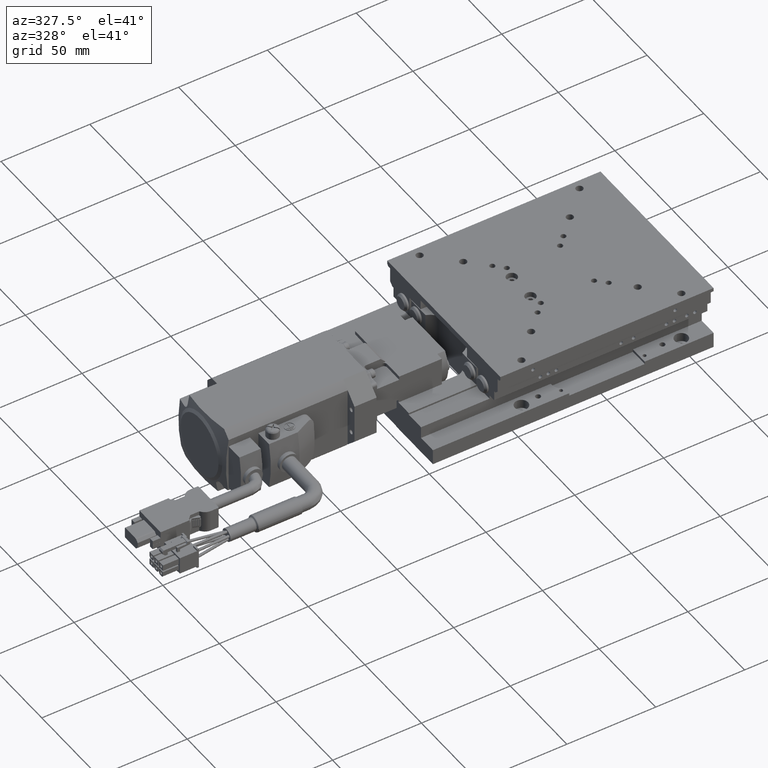
[diagram: clean part render]
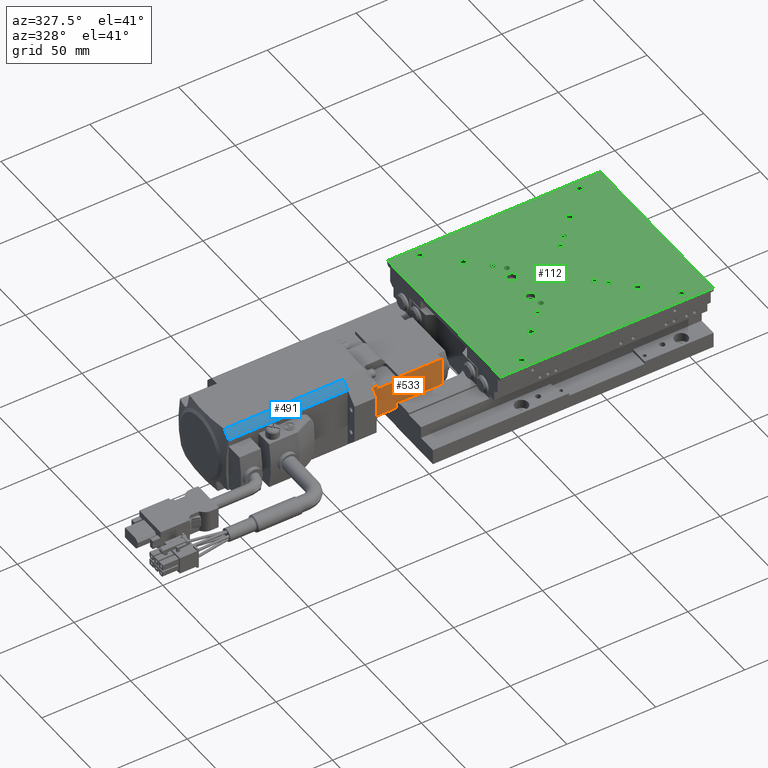
[diagram: same view with three faces highlighted in distinct colors, each labeled with its STEP entity id]
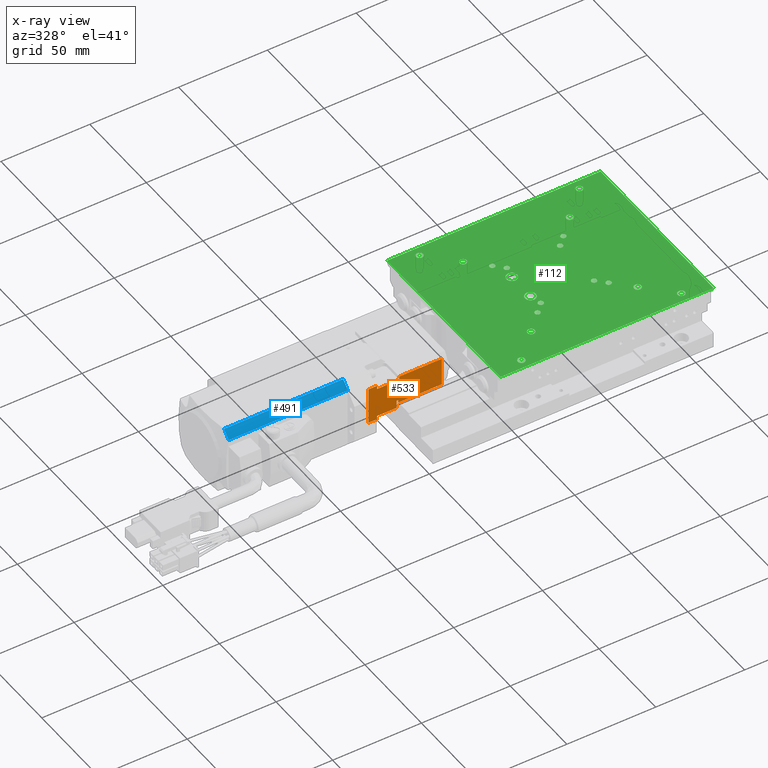
[diagram: x-ray of the same camera — body ghosted, the three highlighted faces saturated]
A machine part, auxiliary view with three faces highlighted in distinct colors.
The next image is the same camera in x-ray (body ghosted, the three faces saturated) — at least one of them is partly hidden behind the body in this view.
Their STEP definitions:

[orange] entity #533 — the highlighted planar face has unit normal (0, -1, 0).
#533=ADVANCED_FACE('',(#5699),#5698,.T.);
#5698=PLANE('',#17119);
#5699=FACE_OUTER_BOUND('',#17120,.T.);
#17116=CARTESIAN_POINT('',(-1.19150000000E+02,-1.95000000000E+01,9.40000000010E+00));
#17117=DIRECTION('',(0.00000000000E+00,-1.00000000000E+00,0.00000000000E+00));
#17118=DIRECTION('',(1.00000000000E+00,0.00000000000E+00,0.00000000000E+00));
#17119=AXIS2_PLACEMENT_3D('',#17116,#17117,#17118);
#17120=EDGE_LOOP('',(#24312,#24313,#24314,#24315,#24316,#24317,#24318,#24319,#24320,#24321,#24322,#24323,#24324,#24325));
#24312=ORIENTED_EDGE('',*,*,#29327,.T.);
#24313=ORIENTED_EDGE('',*,*,#29610,.T.);
#24314=ORIENTED_EDGE('',*,*,#29618,.F.);
#24315=ORIENTED_EDGE('',*,*,#29619,.F.);
#24316=ORIENTED_EDGE('',*,*,#29620,.T.);
#24317=ORIENTED_EDGE('',*,*,#29621,.T.);
#24318=ORIENTED_EDGE('',*,*,#29622,.T.);
#24319=ORIENTED_EDGE('',*,*,#29623,.F.);
#24320=ORIENTED_EDGE('',*,*,#29624,.T.);
#24321=ORIENTED_EDGE('',*,*,#29625,.T.);
#24322=ORIENTED_EDGE('',*,*,#29626,.T.);
#24323=ORIENTED_EDGE('',*,*,#29627,.F.);
#24324=ORIENTED_EDGE('',*,*,#29628,.F.);
#24325=ORIENTED_EDGE('',*,*,#29379,.T.);
#29327=EDGE_CURVE('',#37863,#37856,#37864,.T.);
#29379=EDGE_CURVE('',#38223,#37863,#38224,.T.);
#29610=EDGE_CURVE('',#37856,#39794,#39801,.T.);
#29618=EDGE_CURVE('',#39855,#39794,#39856,.T.);
#29619=EDGE_CURVE('',#39862,#39855,#39863,.T.);
#29620=EDGE_CURVE('',#39862,#39869,#39870,.T.);
#29621=EDGE_CURVE('',#39869,#39876,#39877,.T.);
#29622=EDGE_CURVE('',#39876,#39883,#39884,.T.);
#29623=EDGE_CURVE('',#39890,#39883,#39891,.T.);
#29624=EDGE_CURVE('',#39890,#39897,#39898,.T.);
#29625=EDGE_CURVE('',#39897,#39904,#39905,.T.);
#29626=EDGE_CURVE('',#39904,#39911,#39912,.T.);
#29627=EDGE_CURVE('',#39918,#39911,#39919,.T.);
#29628=EDGE_CURVE('',#38223,#39918,#39925,.T.);
#37856=VERTEX_POINT('',#55673);
#37863=VERTEX_POINT('',#55677);
#37864=LINE('',#55678,#55679);
#38223=VERTEX_POINT('',#55895);
#38224=LINE('',#55896,#55897);
#39794=VERTEX_POINT('',#56949);
#39801=LINE('',#56953,#56954);
#39855=VERTEX_POINT('',#56985);
#39856=LINE('',#56986,#56987);
#39862=VERTEX_POINT('',#56989);
#39863=LINE('',#56990,#56991);
#39869=VERTEX_POINT('',#56993);
#39870=LINE('',#56994,#56995);
#39876=VERTEX_POINT('',#56997);
#39877=LINE('',#56998,#56999);
#39883=VERTEX_POINT('',#57001);
#39884=LINE('',#57002,#57003);
#39890=VERTEX_POINT('',#57005);
#39891=LINE('',#57006,#57007);
#39897=VERTEX_POINT('',#57009);
#39898=LINE('',#57010,#57011);
#39904=VERTEX_POINT('',#57013);
#39905=LINE('',#57014,#57015);
#39911=VERTEX_POINT('',#57017);
#39912=LINE('',#57018,#57019);
#39918=VERTEX_POINT('',#57021);
#39919=LINE('',#57022,#57023);
#39925=LINE('',#57025,#57026);
#55673=CARTESIAN_POINT('',(-7.34999999999E+01,-1.95000000000E+01,1.65000000001E+01));
#55677=CARTESIAN_POINT('',(-9.80000000000E+01,-1.95000000000E+01,1.65000000000E+01));
#55678=CARTESIAN_POINT('',(-9.80000000000E+01,-1.95000000000E+01,1.65000000001E+01));
#55679=VECTOR('',#55680,2.45000000001E+01);
#55680=DIRECTION('',(1.00000000000E+00,0.00000000000E+00,0.00000000000E+00));
#55895=CARTESIAN_POINT('',(-9.80000000000E+01,-1.95000000000E+01,1.80000000001E+01));
#55896=CARTESIAN_POINT('',(-9.80000000000E+01,-1.95000000000E+01,1.80000000001E+01));
#55897=VECTOR('',#55898,1.50000000005E+00);
#55898=DIRECTION('',(0.00000000000E+00,0.00000000000E+00,-1.00000000000E+00));
#56949=CARTESIAN_POINT('',(-7.35000000000E+01,-1.95000000000E+01,3.25000000000E+01));
#56953=CARTESIAN_POINT('',(-7.34999999999E+01,-1.95000000000E+01,1.65000000001E+01));
#56954=VECTOR('',#56955,1.59999999999E+01);
#56955=DIRECTION('',(0.00000000000E+00,0.00000000000E+00,1.00000000000E+00));
#56985=CARTESIAN_POINT('',(-9.75000000000E+01,-1.95000000000E+01,3.25000000000E+01));
#56986=CARTESIAN_POINT('',(-9.75000000000E+01,-1.95000000000E+01,3.25000000000E+01));
#56987=VECTOR('',#56988,2.40000000000E+01);
#56988=DIRECTION('',(1.00000000000E+00,0.00000000000E+00,0.00000000000E+00));
#56989=CARTESIAN_POINT('',(-9.75000000000E+01,-1.95000000000E+01,3.05000000000E+01));
#56990=CARTESIAN_POINT('',(-9.75000000000E+01,-1.95000000000E+01,3.05000000000E+01));
#56991=VECTOR('',#56992,2.00000000004E+00);
#56992=DIRECTION('',(0.00000000000E+00,0.00000000000E+00,1.00000000000E+00));
#56993=CARTESIAN_POINT('',(-1.10000000000E+02,-1.94999999980E+01,3.05000000000E+01));
#56994=CARTESIAN_POINT('',(-9.75000000000E+01,-1.94999999980E+01,3.05000000000E+01));
#56995=VECTOR('',#56996,1.25000000000E+01);
#56996=DIRECTION('',(-1.00000000000E+00,0.00000000000E+00,0.00000000000E+00));
#56997=CARTESIAN_POINT('',(-1.10000000000E+02,-1.94999999980E+01,3.25000000000E+01));
#56998=CARTESIAN_POINT('',(-1.10000000000E+02,-1.94999999980E+01,3.05000000000E+01));
#56999=VECTOR('',#57000,2.00000000000E+00);
#57000=DIRECTION('',(0.00000000000E+00,0.00000000000E+00,1.00000000000E+00));
#57001=CARTESIAN_POINT('',(-1.15000000000E+02,-1.95000000000E+01,3.25000000000E+01));
#57002=CARTESIAN_POINT('',(-1.10000000000E+02,-1.95000000000E+01,3.25000000000E+01));
#57003=VECTOR('',#57004,5.00000000000E+00);
#57004=DIRECTION('',(-1.00000000000E+00,0.00000000000E+00,0.00000000000E+00));
#57005=CARTESIAN_POINT('',(-1.15000000000E+02,-1.95000000000E+01,1.15000000001E+01));
#57006=CARTESIAN_POINT('',(-1.15000000000E+02,-1.95000000000E+01,1.15000000001E+01));
#57007=VECTOR('',#57008,2.09999999999E+01);
#57008=DIRECTION('',(0.00000000000E+00,0.00000000000E+00,1.00000000000E+00));
#57009=CARTESIAN_POINT('',(-1.10000000000E+02,-1.94999999980E+01,1.15000000001E+01));
#57010=CARTESIAN_POINT('',(-1.15000000000E+02,-1.95000000000E+01,1.15000000001E+01));
#57011=VECTOR('',#57012,5.00000000000E+00);
#57012=DIRECTION('',(1.00000000000E+00,0.00000000000E+00,0.00000000000E+00));
#57013=CARTESIAN_POINT('',(-1.10000000000E+02,-1.94999999980E+01,1.35000000000E+01));
#57014=CARTESIAN_POINT('',(-1.10000000000E+02,-1.94999999980E+01,1.15000000001E+01));
#57015=VECTOR('',#57016,1.99999999996E+00);
#57016=DIRECTION('',(0.00000000000E+00,0.00000000000E+00,1.00000000000E+00));
#57017=CARTESIAN_POINT('',(-9.90000000000E+01,-1.94999999980E+01,1.35000000000E+01));
#57018=CARTESIAN_POINT('',(-1.10000000000E+02,-1.94999999980E+01,1.35000000000E+01));
#57019=VECTOR('',#57020,1.10000000000E+01);
#57020=DIRECTION('',(1.00000000000E+00,0.00000000000E+00,0.00000000000E+00));
#57021=CARTESIAN_POINT('',(-9.90000000000E+01,-1.95000000000E+01,1.80000000000E+01));
#57022=CARTESIAN_POINT('',(-9.90000000000E+01,-1.95000000000E+01,1.80000000000E+01));
#57023=VECTOR('',#57024,4.50000000000E+00);
#57024=DIRECTION('',(0.00000000000E+00,0.00000000000E+00,-1.00000000000E+00));
#57025=CARTESIAN_POINT('',(-9.80000000000E+01,-1.95000000000E+01,1.80000000000E+01));
#57026=VECTOR('',#57027,1.00000000001E+00);
#57027=DIRECTION('',(-1.00000000000E+00,0.00000000000E+00,0.00000000000E+00));

[blue] entity #491 — the highlighted cylindrical surface (partial cylindrical patch) has radius 27 mm, axis along (-1, 0, 0).
#491=ADVANCED_FACE('',(#5260),#5259,.T.);
#5259=CYLINDRICAL_SURFACE('',#16890,2.70000000000E+01);
#5260=FACE_OUTER_BOUND('',#16891,.T.);
#16887=CARTESIAN_POINT('',(-1.61004390958E+02,1.37565921016E-05,2.20000095649E+01));
#16888=DIRECTION('',(-1.00000000000E+00,2.85465837313E-07,2.85476031338E-07));
#16889=DIRECTION('',(2.85476031338E-07,-1.01738241094E-27,1.00000000000E+00));
#16890=AXIS2_PLACEMENT_3D('',#16887,#16888,#16889);
#16891=EDGE_LOOP('',(#24072,#24073,#24074,#24075,#24076,#24077));
#24072=ORIENTED_EDGE('',*,*,#29442,.F.);
#24073=ORIENTED_EDGE('',*,*,#29443,.T.);
#24074=ORIENTED_EDGE('',*,*,#29444,.T.);
#24075=ORIENTED_EDGE('',*,*,#29445,.T.);
#24076=ORIENTED_EDGE('',*,*,#29446,.F.);
#24077=ORIENTED_EDGE('',*,*,#29447,.T.);
#29442=EDGE_CURVE('',#38652,#38653,#38654,.T.);
#29443=EDGE_CURVE('',#38652,#38660,#38661,.T.);
#29444=EDGE_CURVE('',#38660,#38667,#38668,.T.);
#29445=EDGE_CURVE('',#38667,#38674,#38675,.T.);
#29446=EDGE_CURVE('',#38681,#38674,#38682,.T.);
#29447=EDGE_CURVE('',#38681,#38653,#38688,.T.);
#38652=VERTEX_POINT('',#56229);
#38653=VERTEX_POINT('',#56230);
#38654=LINE('',#56231,#56232);
#38660=VERTEX_POINT('',#56234);
#38661=CIRCLE('',#56238,2.70000000000E+01);
#38667=VERTEX_POINT('',#56239);
#38668=CIRCLE('',#56243,2.70000000000E+01);
#38674=VERTEX_POINT('',#56244);
#38675=CIRCLE('',#56248,2.70000000000E+01);
#38681=VERTEX_POINT('',#56249);
#38682=LINE('',#56250,#56251);
#38688=CIRCLE('',#56256,2.70000000000E+01);
#56229=CARTESIAN_POINT('',(-1.27499994792E+02,-2.09999958078E+01,3.89705627486E+01));
#56230=CARTESIAN_POINT('',(-1.94508792869E+02,-2.09999766790E+01,3.89705818780E+01));
#56231=CARTESIAN_POINT('',(-1.27499994792E+02,-2.09999958078E+01,3.89705627486E+01));
#56232=VECTOR('',#56233,6.70087980764E+01);
#56233=DIRECTION('',(-1.00000000000E+00,2.85465836599E-07,2.85476030329E-07));
#56234=CARTESIAN_POINT('',(-1.27499994792E+02,-2.08708053137E+01,3.91291946855E+01));
#56235=CARTESIAN_POINT('',(-1.27499988797E+02,4.19222988268E-06,2.20000000001E+01));
#56236=DIRECTION('',(-1.00000000000E+00,2.85465837313E-07,2.85476031338E-07));
#56237=DIRECTION('',(4.25960622433E-08,7.77777777778E-01,-6.28539361055E-01));
#56238=AXIS2_PLACEMENT_3D('',#56235,#56236,#56237);
#56239=CARTESIAN_POINT('',(-1.27499994792E+02,-1.71291904931E+01,4.28708095061E+01));
#56240=CARTESIAN_POINT('',(-1.27499988797E+02,4.19222988268E-06,2.20000000001E+01));
#56241=DIRECTION('',(-1.00000000000E+00,2.85465837313E-07,2.85476031338E-07));
#56242=DIRECTION('',(4.25960622433E-08,7.77777777778E-01,-6.28539361055E-01));
#56243=AXIS2_PLACEMENT_3D('',#56240,#56241,#56242);
#56244=CARTESIAN_POINT('',(-1.27499994792E+02,-1.69705585562E+01,4.30000000001E+01));
#56245=CARTESIAN_POINT('',(-1.27499988797E+02,4.19222988268E-06,2.20000000001E+01));
#56246=DIRECTION('',(-1.00000000000E+00,2.85465837313E-07,2.85476031338E-07));
#56247=DIRECTION('',(4.25960622433E-08,7.77777777778E-01,-6.28539361055E-01));
#56248=AXIS2_PLACEMENT_3D('',#56245,#56246,#56247);
#56249=CARTESIAN_POINT('',(-1.94508790568E+02,-1.69705394275E+01,4.30000191296E+01));
#56250=CARTESIAN_POINT('',(-1.94508790568E+02,-1.69705394275E+01,4.30000191296E+01));
#56251=VECTOR('',#56252,6.70087957758E+01);
#56252=DIRECTION('',(1.00000000000E+00,-2.85465837333E-07,-2.85476031435E-07));
#56253=CARTESIAN_POINT('',(-1.94508791719E+02,2.33209539180E-05,2.20000191296E+01));
#56254=DIRECTION('',(1.00000000000E+00,-2.85465837313E-07,-2.85476031338E-07));
#56255=DIRECTION('',(-4.26103982751E-08,6.28539361055E-01,-7.77777777778E-01));
#56256=AXIS2_PLACEMENT_3D('',#56253,#56254,#56255);

[green] entity #112 — the highlighted planar face has unit normal (0, 0, 1).
#112=ADVANCED_FACE('',(#1377,#1378,#1379,#1380,#1381,#1382,#1383,#1384,#1385,#1386,#1387,#1388,#1389,#1390,#1391,#1392,#1393,#1394,#1395),#1376,.T.);
#1376=PLANE('',#14187);
#1377=FACE_OUTER_BOUND('',#14188,.T.);
#1378=FACE_BOUND('',#14189,.T.);
#1379=FACE_BOUND('',#14190,.T.);
#1380=FACE_BOUND('',#14191,.T.);
#1381=FACE_BOUND('',#14192,.T.);
#1382=FACE_BOUND('',#14193,.T.);
#1383=FACE_BOUND('',#14194,.T.);
#1384=FACE_BOUND('',#14195,.T.);
#1385=FACE_BOUND('',#14196,.T.);
#1386=FACE_BOUND('',#14197,.T.);
#1387=FACE_BOUND('',#14198,.T.);
#1388=FACE_BOUND('',#14199,.T.);
#1389=FACE_BOUND('',#14200,.T.);
#1390=FACE_BOUND('',#14201,.T.);
#1391=FACE_BOUND('',#14202,.T.);
#1392=FACE_BOUND('',#14203,.T.);
#1393=FACE_BOUND('',#14204,.T.);
#1394=FACE_BOUND('',#14205,.T.);
#1395=FACE_BOUND('',#14206,.T.);
#14184=CARTESIAN_POINT('',(7.00000000000E+01,-6.00000000000E+01,3.70000000000E+01));
#14185=DIRECTION('',(0.00000000000E+00,-0.00000000000E+00,1.00000000000E+00));
#14186=DIRECTION('',(0.00000000000E+00,1.00000000000E+00,0.00000000000E+00));
#14187=AXIS2_PLACEMENT_3D('',#14184,#14185,#14186);
#14188=EDGE_LOOP('',(#22225,#22226,#22227,#22228));
#14189=EDGE_LOOP('',(#22229,#22230));
#14190=EDGE_LOOP('',(#22231,#22232));
#14191=EDGE_LOOP('',(#22233,#22234));
#14192=EDGE_LOOP('',(#22235,#22236));
#14193=EDGE_LOOP('',(#22237,#22238));
#14194=EDGE_LOOP('',(#22239,#22240));
#14195=EDGE_LOOP('',(#22241,#22242));
#14196=EDGE_LOOP('',(#22243,#22244));
#14197=EDGE_LOOP('',(#22245,#22246));
#14198=EDGE_LOOP('',(#22247,#22248));
#14199=EDGE_LOOP('',(#22249,#22250));
#14200=EDGE_LOOP('',(#22251,#22252));
#14201=EDGE_LOOP('',(#22253,#22254));
#14202=EDGE_LOOP('',(#22255,#22256));
#14203=EDGE_LOOP('',(#22257,#22258));
#14204=EDGE_LOOP('',(#22259,#22260));
#14205=EDGE_LOOP('',(#22261,#22262));
#14206=EDGE_LOOP('',(#22263,#22264));
#22225=ORIENTED_EDGE('',*,*,#28367,.T.);
#22226=ORIENTED_EDGE('',*,*,#28368,.F.);
#22227=ORIENTED_EDGE('',*,*,#28369,.T.);
#22228=ORIENTED_EDGE('',*,*,#28370,.T.);
#22229=ORIENTED_EDGE('',*,*,#28371,.F.);
#22230=ORIENTED_EDGE('',*,*,#28372,.F.);
#22231=ORIENTED_EDGE('',*,*,#28373,.F.);
#22232=ORIENTED_EDGE('',*,*,#28374,.F.);
#22233=ORIENTED_EDGE('',*,*,#28375,.F.);
#22234=ORIENTED_EDGE('',*,*,#28376,.F.);
#22235=ORIENTED_EDGE('',*,*,#28377,.F.);
#22236=ORIENTED_EDGE('',*,*,#28378,.F.);
#22237=ORIENTED_EDGE('',*,*,#28379,.F.);
#22238=ORIENTED_EDGE('',*,*,#28380,.F.);
#22239=ORIENTED_EDGE('',*,*,#28381,.F.);
#22240=ORIENTED_EDGE('',*,*,#28382,.F.);
#22241=ORIENTED_EDGE('',*,*,#28383,.F.);
#22242=ORIENTED_EDGE('',*,*,#28384,.F.);
#22243=ORIENTED_EDGE('',*,*,#28385,.F.);
#22244=ORIENTED_EDGE('',*,*,#28386,.F.);
#22245=ORIENTED_EDGE('',*,*,#28387,.F.);
#22246=ORIENTED_EDGE('',*,*,#28388,.F.);
#22247=ORIENTED_EDGE('',*,*,#28389,.F.);
#22248=ORIENTED_EDGE('',*,*,#28390,.F.);
#22249=ORIENTED_EDGE('',*,*,#28391,.F.);
#22250=ORIENTED_EDGE('',*,*,#28392,.F.);
#22251=ORIENTED_EDGE('',*,*,#28393,.T.);
#22252=ORIENTED_EDGE('',*,*,#28394,.T.);
#22253=ORIENTED_EDGE('',*,*,#28395,.T.);
#22254=ORIENTED_EDGE('',*,*,#28396,.T.);
#22255=ORIENTED_EDGE('',*,*,#28397,.F.);
#22256=ORIENTED_EDGE('',*,*,#28398,.F.);
#22257=ORIENTED_EDGE('',*,*,#28399,.F.);
#22258=ORIENTED_EDGE('',*,*,#28400,.F.);
#22259=ORIENTED_EDGE('',*,*,#28401,.F.);
#22260=ORIENTED_EDGE('',*,*,#28402,.F.);
#22261=ORIENTED_EDGE('',*,*,#28403,.F.);
#22262=ORIENTED_EDGE('',*,*,#28404,.F.);
#22263=ORIENTED_EDGE('',*,*,#28405,.F.);
#22264=ORIENTED_EDGE('',*,*,#28406,.F.);
#28367=EDGE_CURVE('',#31438,#31439,#31440,.T.);
#28368=EDGE_CURVE('',#31446,#31439,#31447,.T.);
#28369=EDGE_CURVE('',#31446,#31453,#31454,.T.);
#28370=EDGE_CURVE('',#31453,#31438,#31460,.T.);
#28371=EDGE_CURVE('',#31466,#31467,#31468,.T.);
#28372=EDGE_CURVE('',#31467,#31466,#31474,.T.);
#28373=EDGE_CURVE('',#31480,#31481,#31482,.T.);
#28374=EDGE_CURVE('',#31481,#31480,#31488,.T.);
#28375=EDGE_CURVE('',#31494,#31495,#31496,.T.);
#28376=EDGE_CURVE('',#31495,#31494,#31502,.T.);
#28377=EDGE_CURVE('',#31508,#31509,#31510,.T.);
#28378=EDGE_CURVE('',#31509,#31508,#31516,.T.);
#28379=EDGE_CURVE('',#31522,#31523,#31524,.T.);
#28380=EDGE_CURVE('',#31523,#31522,#31530,.T.);
#28381=EDGE_CURVE('',#31536,#31537,#31538,.T.);
#28382=EDGE_CURVE('',#31537,#31536,#31544,.T.);
#28383=EDGE_CURVE('',#31550,#31551,#31552,.T.);
#28384=EDGE_CURVE('',#31551,#31550,#31558,.T.);
#28385=EDGE_CURVE('',#31564,#31565,#31566,.T.);
#28386=EDGE_CURVE('',#31565,#31564,#31572,.T.);
#28387=EDGE_CURVE('',#31578,#31579,#31580,.T.);
#28388=EDGE_CURVE('',#31579,#31578,#31586,.T.);
#28389=EDGE_CURVE('',#31592,#31593,#31594,.T.);
#28390=EDGE_CURVE('',#31593,#31592,#31600,.T.);
#28391=EDGE_CURVE('',#31606,#31607,#31608,.T.);
#28392=EDGE_CURVE('',#31607,#31606,#31614,.T.);
#28393=EDGE_CURVE('',#31620,#31621,#31622,.T.);
#28394=EDGE_CURVE('',#31621,#31620,#31628,.T.);
#28395=EDGE_CURVE('',#31634,#31635,#31636,.T.);
#28396=EDGE_CURVE('',#31635,#31634,#31642,.T.);
#28397=EDGE_CURVE('',#31648,#31649,#31650,.T.);
#28398=EDGE_CURVE('',#31649,#31648,#31656,.T.);
#28399=EDGE_CURVE('',#31662,#31663,#31664,.T.);
#28400=EDGE_CURVE('',#31663,#31662,#31670,.T.);
#28401=EDGE_CURVE('',#31676,#31677,#31678,.T.);
#28402=EDGE_CURVE('',#31677,#31676,#31684,.T.);
#28403=EDGE_CURVE('',#31690,#31691,#31692,.T.);
#28404=EDGE_CURVE('',#31691,#31690,#31698,.T.);
#28405=EDGE_CURVE('',#31704,#31705,#31706,.T.);
#28406=EDGE_CURVE('',#31705,#31704,#31712,.T.);
#31438=VERTEX_POINT('',#51815);
#31439=VERTEX_POINT('',#51816);
#31440=LINE('',#51817,#51818);
#31446=VERTEX_POINT('',#51820);
#31447=LINE('',#51821,#51822);
#31453=VERTEX_POINT('',#51824);
#31454=LINE('',#51825,#51826);
#31460=LINE('',#51828,#51829);
#31466=VERTEX_POINT('',#51831);
#31467=VERTEX_POINT('',#51832);
#31468=CIRCLE('',#51836,1.50000000000E+00);
#31474=CIRCLE('',#51840,1.50000000000E+00);
#31480=VERTEX_POINT('',#51841);
#31481=VERTEX_POINT('',#51842);
#31482=CIRCLE('',#51846,1.50000000000E+00);
#31488=CIRCLE('',#51850,1.50000000000E+00);
#31494=VERTEX_POINT('',#51851);
#31495=VERTEX_POINT('',#51852);
#31496=CIRCLE('',#51856,1.50000000000E+00);
#31502=CIRCLE('',#51860,1.50000000000E+00);
#31508=VERTEX_POINT('',#51861);
#31509=VERTEX_POINT('',#51862);
#31510=CIRCLE('',#51866,1.50000000000E+00);
#31516=CIRCLE('',#51870,1.50000000000E+00);
#31522=VERTEX_POINT('',#51871);
#31523=VERTEX_POINT('',#51872);
#31524=CIRCLE('',#51876,1.50000000000E+00);
#31530=CIRCLE('',#51880,1.50000000000E+00);
#31536=VERTEX_POINT('',#51881);
#31537=VERTEX_POINT('',#51882);
#31538=CIRCLE('',#51886,1.50000000000E+00);
#31544=CIRCLE('',#51890,1.50000000000E+00);
#31550=VERTEX_POINT('',#51891);
#31551=VERTEX_POINT('',#51892);
#31552=CIRCLE('',#51896,1.50000000000E+00);
#31558=CIRCLE('',#51900,1.50000000000E+00);
#31564=VERTEX_POINT('',#51901);
#31565=VERTEX_POINT('',#51902);
#31566=CIRCLE('',#51906,2.00000000000E+00);
#31572=CIRCLE('',#51910,2.00000000000E+00);
#31578=VERTEX_POINT('',#51911);
#31579=VERTEX_POINT('',#51912);
#31580=CIRCLE('',#51916,2.00000000000E+00);
#31586=CIRCLE('',#51920,2.00000000000E+00);
#31592=VERTEX_POINT('',#51921);
#31593=VERTEX_POINT('',#51922);
#31594=CIRCLE('',#51926,2.00000000000E+00);
#31600=CIRCLE('',#51930,2.00000000000E+00);
#31606=VERTEX_POINT('',#51931);
#31607=VERTEX_POINT('',#51932);
#31608=CIRCLE('',#51936,2.00000000000E+00);
#31614=CIRCLE('',#51940,2.00000000000E+00);
#31620=VERTEX_POINT('',#51941);
#31621=VERTEX_POINT('',#51942);
#31622=CIRCLE('',#51946,3.00000000000E+00);
#31628=CIRCLE('',#51950,3.00000000000E+00);
#31634=VERTEX_POINT('',#51951);
#31635=VERTEX_POINT('',#51952);
#31636=CIRCLE('',#51956,3.00000000000E+00);
#31642=CIRCLE('',#51960,3.00000000000E+00);
#31648=VERTEX_POINT('',#51961);
#31649=VERTEX_POINT('',#51962);
#31650=CIRCLE('',#51966,1.50000000000E+00);
#31656=CIRCLE('',#51970,1.50000000000E+00);
#31662=VERTEX_POINT('',#51971);
#31663=VERTEX_POINT('',#51972);
#31664=CIRCLE('',#51976,2.00000000000E+00);
#31670=CIRCLE('',#51980,2.00000000000E+00);
#31676=VERTEX_POINT('',#51981);
#31677=VERTEX_POINT('',#51982);
#31678=CIRCLE('',#51986,2.00000000000E+00);
#31684=CIRCLE('',#51990,2.00000000000E+00);
#31690=VERTEX_POINT('',#51991);
#31691=VERTEX_POINT('',#51992);
#31692=CIRCLE('',#51996,2.00000000000E+00);
#31698=CIRCLE('',#52000,2.00000000000E+00);
#31704=VERTEX_POINT('',#52001);
#31705=VERTEX_POINT('',#52002);
#31706=CIRCLE('',#52006,2.00000000000E+00);
#31712=CIRCLE('',#52010,2.00000000000E+00);
#51815=CARTESIAN_POINT('',(-6.00000000000E+01,-5.00000000000E+01,3.70000000000E+01));
#51816=CARTESIAN_POINT('',(6.00000000000E+01,-5.00000000000E+01,3.70000000000E+01));
#51817=CARTESIAN_POINT('',(-6.00000000000E+01,-5.00000000000E+01,3.70000000000E+01));
#51818=VECTOR('',#51819,1.20000000000E+02);
#51819=DIRECTION('',(1.00000000000E+00,0.00000000000E+00,0.00000000000E+00));
#51820=CARTESIAN_POINT('',(6.00000000000E+01,5.00000000000E+01,3.70000000000E+01));
#51821=CARTESIAN_POINT('',(6.00000000000E+01,5.00000000000E+01,3.70000000000E+01));
#51822=VECTOR('',#51823,1.00000000000E+02);
#51823=DIRECTION('',(0.00000000000E+00,-1.00000000000E+00,0.00000000000E+00));
#51824=CARTESIAN_POINT('',(-6.00000000000E+01,5.00000000000E+01,3.70000000000E+01));
#51825=CARTESIAN_POINT('',(6.00000000000E+01,5.00000000000E+01,3.70000000000E+01));
#51826=VECTOR('',#51827,1.20000000000E+02);
#51827=DIRECTION('',(-1.00000000000E+00,0.00000000000E+00,0.00000000000E+00));
#51828=CARTESIAN_POINT('',(-6.00000000000E+01,5.00000000000E+01,3.70000000000E+01));
#51829=VECTOR('',#51830,1.00000000000E+02);
#51830=DIRECTION('',(0.00000000000E+00,-1.00000000000E+00,0.00000000000E+00));
#51831=CARTESIAN_POINT('',(1.65000000000E+01,-1.50000000000E+01,3.69999999998E+01));
#51832=CARTESIAN_POINT('',(1.35000000000E+01,-1.50000000000E+01,3.69999999998E+01));
#51833=CARTESIAN_POINT('',(1.50000000000E+01,-1.50000000000E+01,3.69999999998E+01));
#51834=DIRECTION('',(0.00000000000E+00,0.00000000000E+00,1.00000000000E+00));
#51835=DIRECTION('',(-1.00000000000E+00,1.22464679915E-16,0.00000000000E+00));
#51836=AXIS2_PLACEMENT_3D('',#51833,#51834,#51835);
#51837=CARTESIAN_POINT('',(1.50000000000E+01,-1.50000000000E+01,3.69999999998E+01));
#51838=DIRECTION('',(0.00000000000E+00,0.00000000000E+00,1.00000000000E+00));
#51839=DIRECTION('',(-1.00000000000E+00,1.22464679915E-16,0.00000000000E+00));
#51840=AXIS2_PLACEMENT_3D('',#51837,#51838,#51839);
#51841=CARTESIAN_POINT('',(1.65000000000E+01,1.50000000000E+01,3.69999999998E+01));
#51842=CARTESIAN_POINT('',(1.35000000000E+01,1.50000000000E+01,3.69999999998E+01));
#51843=CARTESIAN_POINT('',(1.50000000000E+01,1.50000000000E+01,3.69999999998E+01));
#51844=DIRECTION('',(0.00000000000E+00,0.00000000000E+00,1.00000000000E+00));
#51845=DIRECTION('',(-1.00000000000E+00,1.22464679915E-16,0.00000000000E+00));
#51846=AXIS2_PLACEMENT_3D('',#51843,#51844,#51845);
#51847=CARTESIAN_POINT('',(1.50000000000E+01,1.50000000000E+01,3.69999999998E+01));
#51848=DIRECTION('',(0.00000000000E+00,0.00000000000E+00,1.00000000000E+00));
#51849=DIRECTION('',(-1.00000000000E+00,1.22464679915E-16,0.00000000000E+00));
#51850=AXIS2_PLACEMENT_3D('',#51847,#51848,#51849);
#51851=CARTESIAN_POINT('',(-1.35000000000E+01,1.50000000000E+01,3.69999999998E+01));
#51852=CARTESIAN_POINT('',(-1.65000000000E+01,1.50000000000E+01,3.69999999998E+01));
#51853=CARTESIAN_POINT('',(-1.50000000000E+01,1.50000000000E+01,3.69999999998E+01));
#51854=DIRECTION('',(0.00000000000E+00,0.00000000000E+00,1.00000000000E+00));
#51855=DIRECTION('',(-1.00000000000E+00,1.22464679915E-16,0.00000000000E+00));
#51856=AXIS2_PLACEMENT_3D('',#51853,#51854,#51855);
#51857=CARTESIAN_POINT('',(-1.50000000000E+01,1.50000000000E+01,3.69999999998E+01));
#51858=DIRECTION('',(0.00000000000E+00,0.00000000000E+00,1.00000000000E+00));
#51859=DIRECTION('',(-1.00000000000E+00,1.22464679915E-16,0.00000000000E+00));
#51860=AXIS2_PLACEMENT_3D('',#51857,#51858,#51859);
#51861=CARTESIAN_POINT('',(2.15000000000E+01,-2.00000000000E+01,3.69999999998E+01));
#51862=CARTESIAN_POINT('',(1.85000000000E+01,-2.00000000000E+01,3.69999999998E+01));
#51863=CARTESIAN_POINT('',(2.00000000000E+01,-2.00000000000E+01,3.69999999998E+01));
#51864=DIRECTION('',(0.00000000000E+00,0.00000000000E+00,1.00000000000E+00));
#51865=DIRECTION('',(-1.00000000000E+00,1.22464679915E-16,0.00000000000E+00));
#51866=AXIS2_PLACEMENT_3D('',#51863,#51864,#51865);
#51867=CARTESIAN_POINT('',(2.00000000000E+01,-2.00000000000E+01,3.69999999998E+01));
#51868=DIRECTION('',(0.00000000000E+00,0.00000000000E+00,1.00000000000E+00));
#51869=DIRECTION('',(-1.00000000000E+00,1.22464679915E-16,0.00000000000E+00));
#51870=AXIS2_PLACEMENT_3D('',#51867,#51868,#51869);
#51871=CARTESIAN_POINT('',(-1.85000000000E+01,-2.00000000000E+01,3.69999999998E+01));
#51872=CARTESIAN_POINT('',(-2.15000000000E+01,-2.00000000000E+01,3.69999999998E+01));
#51873=CARTESIAN_POINT('',(-2.00000000000E+01,-2.00000000000E+01,3.69999999998E+01));
#51874=DIRECTION('',(0.00000000000E+00,0.00000000000E+00,1.00000000000E+00));
#51875=DIRECTION('',(-1.00000000000E+00,1.22464679915E-16,0.00000000000E+00));
#51876=AXIS2_PLACEMENT_3D('',#51873,#51874,#51875);
#51877=CARTESIAN_POINT('',(-2.00000000000E+01,-2.00000000000E+01,3.69999999998E+01));
#51878=DIRECTION('',(0.00000000000E+00,0.00000000000E+00,1.00000000000E+00));
#51879=DIRECTION('',(-1.00000000000E+00,1.22464679915E-16,0.00000000000E+00));
#51880=AXIS2_PLACEMENT_3D('',#51877,#51878,#51879);
#51881=CARTESIAN_POINT('',(-1.85000000000E+01,2.00000000000E+01,3.69999999998E+01));
#51882=CARTESIAN_POINT('',(-2.15000000000E+01,2.00000000000E+01,3.69999999998E+01));
#51883=CARTESIAN_POINT('',(-2.00000000000E+01,2.00000000000E+01,3.69999999998E+01));
#51884=DIRECTION('',(0.00000000000E+00,0.00000000000E+00,1.00000000000E+00));
#51885=DIRECTION('',(-1.00000000000E+00,1.22464679915E-16,0.00000000000E+00));
#51886=AXIS2_PLACEMENT_3D('',#51883,#51884,#51885);
#51887=CARTESIAN_POINT('',(-2.00000000000E+01,2.00000000000E+01,3.69999999998E+01));
#51888=DIRECTION('',(0.00000000000E+00,0.00000000000E+00,1.00000000000E+00));
#51889=DIRECTION('',(-1.00000000000E+00,1.22464679915E-16,0.00000000000E+00));
#51890=AXIS2_PLACEMENT_3D('',#51887,#51888,#51889);
#51891=CARTESIAN_POINT('',(2.15000000000E+01,2.00000000000E+01,3.69999999998E+01));
#51892=CARTESIAN_POINT('',(1.85000000000E+01,2.00000000000E+01,3.69999999998E+01));
#51893=CARTESIAN_POINT('',(2.00000000000E+01,2.00000000000E+01,3.69999999998E+01));
#51894=DIRECTION('',(0.00000000000E+00,0.00000000000E+00,1.00000000000E+00));
#51895=DIRECTION('',(-1.00000000000E+00,1.22464679915E-16,0.00000000000E+00));
#51896=AXIS2_PLACEMENT_3D('',#51893,#51894,#51895);
#51897=CARTESIAN_POINT('',(2.00000000000E+01,2.00000000000E+01,3.69999999998E+01));
#51898=DIRECTION('',(0.00000000000E+00,0.00000000000E+00,1.00000000000E+00));
#51899=DIRECTION('',(-1.00000000000E+00,1.22464679915E-16,0.00000000000E+00));
#51900=AXIS2_PLACEMENT_3D('',#51897,#51898,#51899);
#51901=CARTESIAN_POINT('',(3.20000000000E+01,3.00000000000E+01,3.70000000000E+01));
#51902=CARTESIAN_POINT('',(2.80000000000E+01,3.00000000000E+01,3.70000000000E+01));
#51903=CARTESIAN_POINT('',(3.00000000000E+01,3.00000000000E+01,3.70000000000E+01));
#51904=DIRECTION('',(0.00000000000E+00,0.00000000000E+00,1.00000000000E+00));
#51905=DIRECTION('',(-1.00000000000E+00,1.22464679915E-16,0.00000000000E+00));
#51906=AXIS2_PLACEMENT_3D('',#51903,#51904,#51905);
#51907=CARTESIAN_POINT('',(3.00000000000E+01,3.00000000000E+01,3.70000000000E+01));
#51908=DIRECTION('',(0.00000000000E+00,0.00000000000E+00,1.00000000000E+00));
#51909=DIRECTION('',(-1.00000000000E+00,1.22464679915E-16,0.00000000000E+00));
#51910=AXIS2_PLACEMENT_3D('',#51907,#51908,#51909);
#51911=CARTESIAN_POINT('',(3.20000000000E+01,-3.00000000000E+01,3.70000000000E+01));
#51912=CARTESIAN_POINT('',(2.80000000000E+01,-3.00000000000E+01,3.70000000000E+01));
#51913=CARTESIAN_POINT('',(3.00000000000E+01,-3.00000000000E+01,3.70000000000E+01));
#51914=DIRECTION('',(0.00000000000E+00,0.00000000000E+00,1.00000000000E+00));
#51915=DIRECTION('',(-1.00000000000E+00,1.22464679915E-16,0.00000000000E+00));
#51916=AXIS2_PLACEMENT_3D('',#51913,#51914,#51915);
#51917=CARTESIAN_POINT('',(3.00000000000E+01,-3.00000000000E+01,3.70000000000E+01));
#51918=DIRECTION('',(0.00000000000E+00,0.00000000000E+00,1.00000000000E+00));
#51919=DIRECTION('',(-1.00000000000E+00,1.22464679915E-16,0.00000000000E+00));
#51920=AXIS2_PLACEMENT_3D('',#51917,#51918,#51919);
#51921=CARTESIAN_POINT('',(-2.80000000000E+01,-3.00000000000E+01,3.70000000000E+01));
#51922=CARTESIAN_POINT('',(-3.20000000000E+01,-3.00000000000E+01,3.70000000000E+01));
#51923=CARTESIAN_POINT('',(-3.00000000000E+01,-3.00000000000E+01,3.70000000000E+01));
#51924=DIRECTION('',(0.00000000000E+00,0.00000000000E+00,1.00000000000E+00));
#51925=DIRECTION('',(-1.00000000000E+00,1.22464679915E-16,0.00000000000E+00));
#51926=AXIS2_PLACEMENT_3D('',#51923,#51924,#51925);
#51927=CARTESIAN_POINT('',(-3.00000000000E+01,-3.00000000000E+01,3.70000000000E+01));
#51928=DIRECTION('',(0.00000000000E+00,0.00000000000E+00,1.00000000000E+00));
#51929=DIRECTION('',(-1.00000000000E+00,1.22464679915E-16,0.00000000000E+00));
#51930=AXIS2_PLACEMENT_3D('',#51927,#51928,#51929);
#51931=CARTESIAN_POINT('',(-2.80000000000E+01,3.00000000000E+01,3.70000000000E+01));
#51932=CARTESIAN_POINT('',(-3.20000000000E+01,3.00000000000E+01,3.70000000000E+01));
#51933=CARTESIAN_POINT('',(-3.00000000000E+01,3.00000000000E+01,3.70000000000E+01));
#51934=DIRECTION('',(0.00000000000E+00,0.00000000000E+00,1.00000000000E+00));
#51935=DIRECTION('',(-1.00000000000E+00,1.22464679915E-16,0.00000000000E+00));
#51936=AXIS2_PLACEMENT_3D('',#51933,#51934,#51935);
#51937=CARTESIAN_POINT('',(-3.00000000000E+01,3.00000000000E+01,3.70000000000E+01));
#51938=DIRECTION('',(0.00000000000E+00,0.00000000000E+00,1.00000000000E+00));
#51939=DIRECTION('',(-1.00000000000E+00,1.22464679915E-16,0.00000000000E+00));
#51940=AXIS2_PLACEMENT_3D('',#51937,#51938,#51939);
#51941=CARTESIAN_POINT('',(-1.65000000000E+01,1.12500000000E+01,3.70000000000E+01));
#51942=CARTESIAN_POINT('',(-1.65000000000E+01,5.25000000000E+00,3.70000000000E+01));
#51943=CARTESIAN_POINT('',(-1.65000000000E+01,8.25000000000E+00,3.70000000000E+01));
#51944=DIRECTION('',(0.00000000000E+00,0.00000000000E+00,-1.00000000000E+00));
#51945=DIRECTION('',(-1.22464679915E-16,1.00000000000E+00,0.00000000000E+00));
#51946=AXIS2_PLACEMENT_3D('',#51943,#51944,#51945);
#51947=CARTESIAN_POINT('',(-1.65000000000E+01,8.25000000000E+00,3.70000000000E+01));
#51948=DIRECTION('',(0.00000000000E+00,0.00000000000E+00,-1.00000000000E+00));
#51949=DIRECTION('',(-1.22464679915E-16,1.00000000000E+00,0.00000000000E+00));
#51950=AXIS2_PLACEMENT_3D('',#51947,#51948,#51949);
#51951=CARTESIAN_POINT('',(-1.65000000000E+01,-5.25000000000E+00,3.70000000000E+01));
#51952=CARTESIAN_POINT('',(-1.65000000000E+01,-1.12500000000E+01,3.70000000000E+01));
#51953=CARTESIAN_POINT('',(-1.65000000000E+01,-8.25000000000E+00,3.70000000000E+01));
#51954=DIRECTION('',(0.00000000000E+00,0.00000000000E+00,-1.00000000000E+00));
#51955=DIRECTION('',(-1.22464679915E-16,1.00000000000E+00,0.00000000000E+00));
#51956=AXIS2_PLACEMENT_3D('',#51953,#51954,#51955);
#51957=CARTESIAN_POINT('',(-1.65000000000E+01,-8.25000000000E+00,3.70000000000E+01));
#51958=DIRECTION('',(0.00000000000E+00,0.00000000000E+00,-1.00000000000E+00));
#51959=DIRECTION('',(-1.22464679915E-16,1.00000000000E+00,0.00000000000E+00));
#51960=AXIS2_PLACEMENT_3D('',#51957,#51958,#51959);
#51961=CARTESIAN_POINT('',(-1.35000000000E+01,-1.50000000000E+01,3.69999999998E+01));
#51962=CARTESIAN_POINT('',(-1.65000000000E+01,-1.50000000000E+01,3.69999999998E+01));
#51963=CARTESIAN_POINT('',(-1.50000000000E+01,-1.50000000000E+01,3.69999999998E+01));
#51964=DIRECTION('',(0.00000000000E+00,0.00000000000E+00,1.00000000000E+00));
#51965=DIRECTION('',(-1.00000000000E+00,1.22464679915E-16,0.00000000000E+00));
#51966=AXIS2_PLACEMENT_3D('',#51963,#51964,#51965);
#51967=CARTESIAN_POINT('',(-1.50000000000E+01,-1.50000000000E+01,3.69999999998E+01));
#51968=DIRECTION('',(0.00000000000E+00,0.00000000000E+00,1.00000000000E+00));
#51969=DIRECTION('',(-1.00000000000E+00,1.22464679915E-16,0.00000000000E+00));
#51970=AXIS2_PLACEMENT_3D('',#51967,#51968,#51969);
#51971=CARTESIAN_POINT('',(-4.30000000000E+01,4.50000000000E+01,3.70000000000E+01));
#51972=CARTESIAN_POINT('',(-4.70000000000E+01,4.50000000000E+01,3.70000000000E+01));
#51973=CARTESIAN_POINT('',(-4.50000000000E+01,4.50000000000E+01,3.70000000000E+01));
#51974=DIRECTION('',(0.00000000000E+00,0.00000000000E+00,1.00000000000E+00));
#51975=DIRECTION('',(-1.00000000000E+00,1.22464679915E-16,0.00000000000E+00));
#51976=AXIS2_PLACEMENT_3D('',#51973,#51974,#51975);
#51977=CARTESIAN_POINT('',(-4.50000000000E+01,4.50000000000E+01,3.70000000000E+01));
#51978=DIRECTION('',(0.00000000000E+00,0.00000000000E+00,1.00000000000E+00));
#51979=DIRECTION('',(-1.00000000000E+00,1.22464679915E-16,0.00000000000E+00));
#51980=AXIS2_PLACEMENT_3D('',#51977,#51978,#51979);
#51981=CARTESIAN_POINT('',(4.70000000000E+01,4.50000000000E+01,3.70000000000E+01));
#51982=CARTESIAN_POINT('',(4.30000000000E+01,4.50000000000E+01,3.70000000000E+01));
#51983=CARTESIAN_POINT('',(4.50000000000E+01,4.50000000000E+01,3.70000000000E+01));
#51984=DIRECTION('',(0.00000000000E+00,0.00000000000E+00,1.00000000000E+00));
#51985=DIRECTION('',(-1.00000000000E+00,1.22464679915E-16,0.00000000000E+00));
#51986=AXIS2_PLACEMENT_3D('',#51983,#51984,#51985);
#51987=CARTESIAN_POINT('',(4.50000000000E+01,4.50000000000E+01,3.70000000000E+01));
#51988=DIRECTION('',(0.00000000000E+00,0.00000000000E+00,1.00000000000E+00));
#51989=DIRECTION('',(-1.00000000000E+00,1.22464679915E-16,0.00000000000E+00));
#51990=AXIS2_PLACEMENT_3D('',#51987,#51988,#51989);
#51991=CARTESIAN_POINT('',(4.70000000000E+01,-4.50000000000E+01,3.70000000000E+01));
#51992=CARTESIAN_POINT('',(4.30000000000E+01,-4.50000000000E+01,3.70000000000E+01));
#51993=CARTESIAN_POINT('',(4.50000000000E+01,-4.50000000000E+01,3.70000000000E+01));
#51994=DIRECTION('',(0.00000000000E+00,0.00000000000E+00,1.00000000000E+00));
#51995=DIRECTION('',(-1.00000000000E+00,1.22464679915E-16,0.00000000000E+00));
#51996=AXIS2_PLACEMENT_3D('',#51993,#51994,#51995);
#51997=CARTESIAN_POINT('',(4.50000000000E+01,-4.50000000000E+01,3.70000000000E+01));
#51998=DIRECTION('',(0.00000000000E+00,0.00000000000E+00,1.00000000000E+00));
#51999=DIRECTION('',(-1.00000000000E+00,1.22464679915E-16,0.00000000000E+00));
#52000=AXIS2_PLACEMENT_3D('',#51997,#51998,#51999);
#52001=CARTESIAN_POINT('',(-4.30000000000E+01,-4.50000000000E+01,3.70000000000E+01));
#52002=CARTESIAN_POINT('',(-4.70000000000E+01,-4.50000000000E+01,3.70000000000E+01));
#52003=CARTESIAN_POINT('',(-4.50000000000E+01,-4.50000000000E+01,3.70000000000E+01));
#52004=DIRECTION('',(0.00000000000E+00,0.00000000000E+00,1.00000000000E+00));
#52005=DIRECTION('',(-1.00000000000E+00,1.22464679915E-16,0.00000000000E+00));
#52006=AXIS2_PLACEMENT_3D('',#52003,#52004,#52005);
#52007=CARTESIAN_POINT('',(-4.50000000000E+01,-4.50000000000E+01,3.70000000000E+01));
#52008=DIRECTION('',(0.00000000000E+00,0.00000000000E+00,1.00000000000E+00));
#52009=DIRECTION('',(-1.00000000000E+00,1.22464679915E-16,0.00000000000E+00));
#52010=AXIS2_PLACEMENT_3D('',#52007,#52008,#52009);